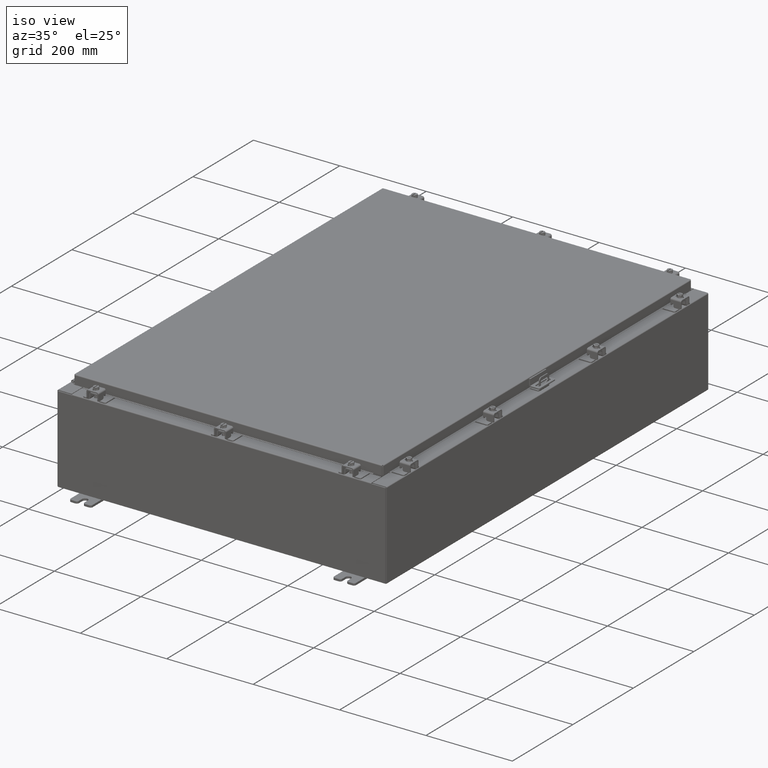
[diagram: clean part render]
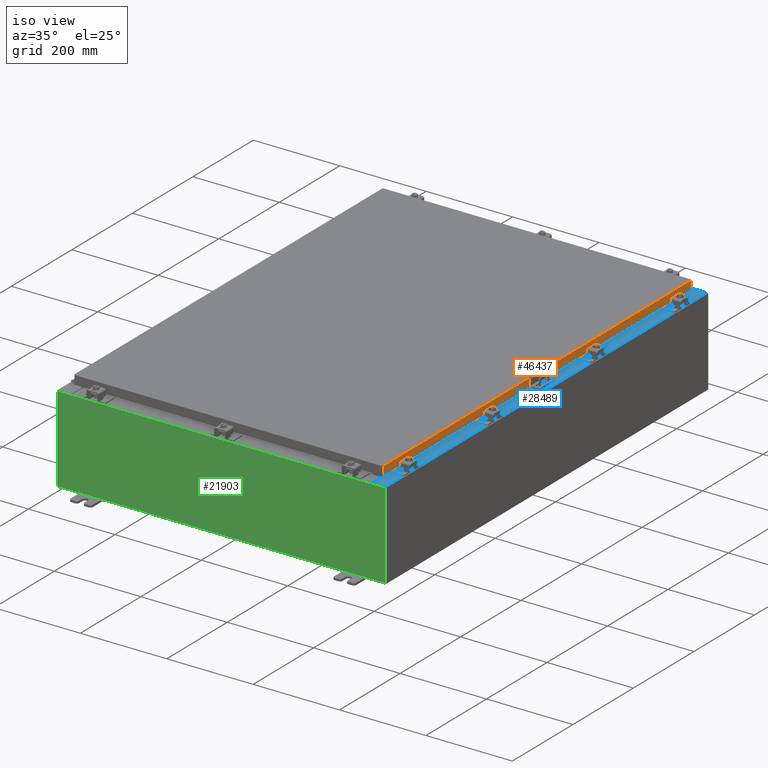
[diagram: same view with three faces highlighted in distinct colors, each labeled with its STEP entity id]
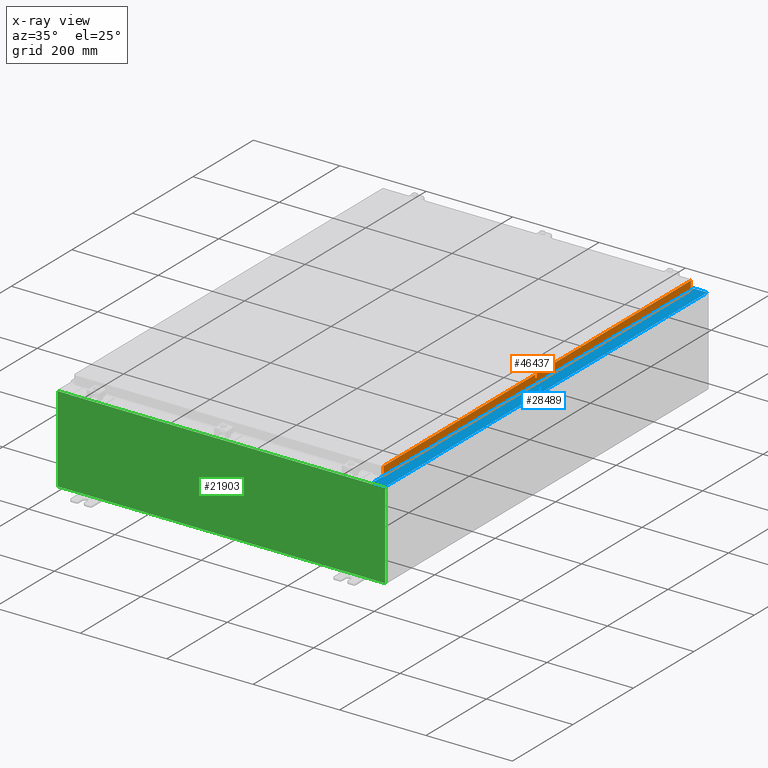
[diagram: x-ray of the same camera — body ghosted, the three highlighted faces saturated]
A machine part, iso view with three faces highlighted in distinct colors.
The next image is the same camera in x-ray (body ghosted, the three faces saturated) — at least one of them is partly hidden behind the body in this view.
Their STEP definitions:

[orange] entity #46437 — the highlighted planar face has unit normal (1, 0, 0).
#115 = VERTEX_POINT ( 'NONE', #22089 ) ;
#2015 = ORIENTED_EDGE ( 'NONE', *, *, #36370, .F. ) ;
#2615 = EDGE_CURVE ( 'NONE', #35873, #115, #22282, .T. ) ;
#3359 = CARTESIAN_POINT ( 'NONE',  ( 14.07800000000000500, -20.09400000000000800, -0.8499999999999996400 ) ) ;
#3400 = LINE ( 'NONE', #19989, #20631 ) ;
#3674 = ORIENTED_EDGE ( 'NONE', *, *, #2615, .T. ) ;
#4221 = CARTESIAN_POINT ( 'NONE',  ( 14.07799999999999600, 19.25515786437627200, -0.8500000000000018700 ) ) ;
#6210 = VECTOR ( 'NONE', #44564, 39.37007874015748100 ) ;
#8283 = EDGE_CURVE ( 'NONE', #115, #15430, #3400, .T. ) ;
#9666 = EDGE_LOOP ( 'NONE', ( #11607, #2015, #9920, #34630, #3674, #30397 ) ) ;
#9920 = ORIENTED_EDGE ( 'NONE', *, *, #14768, .F. ) ;
#10303 = DIRECTION ( 'NONE',  ( 0.0000000000000000000, -1.000000000000000000, 0.0000000000000000000 ) ) ;
#11607 = ORIENTED_EDGE ( 'NONE', *, *, #43453, .F. ) ;
#14407 = DIRECTION ( 'NONE',  ( 2.818880942772360100E-015, 0.0000000000000000000, -1.000000000000000000 ) ) ;
#14469 = CARTESIAN_POINT ( 'NONE',  ( 14.07800000000000500, -20.09400000000000800, -0.8499999999999996400 ) ) ;
#14768 = EDGE_CURVE ( 'NONE', #22478, #45991, #43158, .T. ) ;
#15430 = VERTEX_POINT ( 'NONE', #21108 ) ;
#15583 = CARTESIAN_POINT ( 'NONE',  ( 14.07800000000000500, -20.00515786437627200, -0.8499999999999996400 ) ) ;
#15672 = CARTESIAN_POINT ( 'NONE',  ( 14.07799999999999600, -19.25515786437627600, -0.8500000000000018700 ) ) ;
#18197 = DIRECTION ( 'NONE',  ( 0.0000000000000000000, -1.000000000000000000, 0.0000000000000000000 ) ) ;
#18342 = CARTESIAN_POINT ( 'NONE',  ( 14.07800000000000300, -20.00515786437628000, -0.07469999999999978000 ) ) ;
#19989 = CARTESIAN_POINT ( 'NONE',  ( 14.07800000000000300, 0.0000000000000000000, -0.08770000000000007000 ) ) ;
#20631 = VECTOR ( 'NONE', #42109, 39.37007874015748100 ) ;
#21064 = CARTESIAN_POINT ( 'NONE',  ( 14.07799999999999600, 19.25515786437627200, -0.8500000000000018700 ) ) ;
#21108 = CARTESIAN_POINT ( 'NONE',  ( 14.07800000000000300, -20.00515786437628000, -0.08770000000000007000 ) ) ;
#22089 = CARTESIAN_POINT ( 'NONE',  ( 14.07800000000000300, 20.00515786437626900, -0.08770000000000007000 ) ) ;
#22282 = LINE ( 'NONE', #29680, #33779 ) ;
#22478 = VERTEX_POINT ( 'NONE', #4221 ) ;
#23299 = VECTOR ( 'NONE', #25741, 39.37007874015748100 ) ;
#24965 = LINE ( 'NONE', #18342, #6210 ) ;
#25344 = DIRECTION ( 'NONE',  ( -2.818880942772360100E-015, -6.982962677686265900E-015, 1.000000000000000000 ) ) ;
#25563 = FACE_OUTER_BOUND ( 'NONE', #9666, .T. ) ;
#25741 = DIRECTION ( 'NONE',  ( 0.0000000000000000000, -1.000000000000000000, 0.0000000000000000000 ) ) ;
#29046 = EDGE_CURVE ( 'NONE', #35873, #22478, #41334, .T. ) ;
#29497 = PLANE ( 'NONE',  #35205 ) ;
#29680 = CARTESIAN_POINT ( 'NONE',  ( 14.07800000000000300, 20.00515786437626900, 1.796402902965222800E-013 ) ) ;
#30397 = ORIENTED_EDGE ( 'NONE', *, *, #8283, .T. ) ;
#31366 = VERTEX_POINT ( 'NONE', #15583 ) ;
#33181 = CARTESIAN_POINT ( 'NONE',  ( 14.07800000000000300, 0.0000000000000000000, 3.994501956836086900E-014 ) ) ;
#33779 = VECTOR ( 'NONE', #25344, 39.37007874015748100 ) ;
#34436 = LINE ( 'NONE', #3359, #23299 ) ;
#34630 = ORIENTED_EDGE ( 'NONE', *, *, #29046, .F. ) ;
#35205 = AXIS2_PLACEMENT_3D ( 'NONE', #33181, #48047, #14407 ) ;
#35873 = VERTEX_POINT ( 'NONE', #44291 ) ;
#36370 = EDGE_CURVE ( 'NONE', #45991, #31366, #34436, .T. ) ;
#41168 = VECTOR ( 'NONE', #10303, 39.37007874015748100 ) ;
#41334 = LINE ( 'NONE', #14469, #43660 ) ;
#42109 = DIRECTION ( 'NONE',  ( 0.0000000000000000000, -1.000000000000000000, 0.0000000000000000000 ) ) ;
#43158 = LINE ( 'NONE', #21064, #41168 ) ;
#43453 = EDGE_CURVE ( 'NONE', #31366, #15430, #24965, .T. ) ;
#43660 = VECTOR ( 'NONE', #18197, 39.37007874015748100 ) ;
#44291 = CARTESIAN_POINT ( 'NONE',  ( 14.07800000000000500, 20.00515786437627200, -0.8499999999999996400 ) ) ;
#44564 = DIRECTION ( 'NONE',  ( -2.818880942772360100E-015, -6.982962677686265900E-015, 1.000000000000000000 ) ) ;
#45991 = VERTEX_POINT ( 'NONE', #15672 ) ;
#46437 = ADVANCED_FACE ( 'NONE', ( #25563 ), #29497, .T. ) ;
#48047 = DIRECTION ( 'NONE',  ( 1.000000000000000000, 0.0000000000000000000, 2.818880942772360100E-015 ) ) ;

[blue] entity #28489 — the highlighted planar face has unit normal (-0, -0, -1).
#437 = VECTOR ( 'NONE', #20023, 39.37007874015748100 ) ;
#978 = LINE ( 'NONE', #35865, #13084 ) ;
#1206 = DIRECTION ( 'NONE',  ( -0.0000000000000000000, 1.000000000000000000, -0.0000000000000000000 ) ) ;
#2295 = VERTEX_POINT ( 'NONE', #24656 ) ;
#2790 = LINE ( 'NONE', #34608, #31394 ) ;
#2841 = ORIENTED_EDGE ( 'NONE', *, *, #18166, .F. ) ;
#3816 = DIRECTION ( 'NONE',  ( -1.000000000000000000, 4.340572780400098900E-014, -2.170286390200049500E-014 ) ) ;
#4053 = EDGE_CURVE ( 'NONE', #28879, #27797, #19448, .T. ) ;
#4117 = PLANE ( 'NONE',  #11149 ) ;
#4844 = DIRECTION ( 'NONE',  ( 0.0000000000000000000, -1.000000000000000000, 2.611047864225856100E-017 ) ) ;
#6261 = VERTEX_POINT ( 'NONE', #39890 ) ;
#7044 = EDGE_CURVE ( 'NONE', #46212, #30083, #36415, .T. ) ;
#7733 = CARTESIAN_POINT ( 'NONE',  ( 5.679009539018309200E-014, 20.92529999999999300, 7.925300000000104800 ) ) ;
#7771 = DIRECTION ( 'NONE',  ( -7.132762385546384700E-015, -2.611047864225855500E-017, -1.000000000000000000 ) ) ;
#8572 = VERTEX_POINT ( 'NONE', #29854 ) ;
#8949 = EDGE_CURVE ( 'NONE', #2295, #6261, #10738, .T. ) ;
#9854 = EDGE_CURVE ( 'NONE', #10678, #39949, #978, .T. ) ;
#10678 = VERTEX_POINT ( 'NONE', #45627 ) ;
#10738 = LINE ( 'NONE', #7733, #437 ) ;
#11011 = LINE ( 'NONE', #14951, #22107 ) ;
#11149 = AXIS2_PLACEMENT_3D ( 'NONE', #30321, #7771, #34012 ) ;
#11254 = ORIENTED_EDGE ( 'NONE', *, *, #36434, .F. ) ;
#11305 = VECTOR ( 'NONE', #46805, 39.37007874015748100 ) ;
#11671 = EDGE_CURVE ( 'NONE', #28879, #34675, #28137, .T. ) ;
#12386 = VECTOR ( 'NONE', #33981, 39.37007874015748100 ) ;
#13084 = VECTOR ( 'NONE', #3816, 39.37007874015748100 ) ;
#13444 = ORIENTED_EDGE ( 'NONE', *, *, #38628, .T. ) ;
#13893 = CARTESIAN_POINT ( 'NONE',  ( 13.69970000000003200, 2.069333763834919300E-016, 7.925300000000008900 ) ) ;
#14951 = CARTESIAN_POINT ( 'NONE',  ( 14.91230000000003000, -20.92529999999998900, 7.925300000000000000 ) ) ;
#16002 = CIRCLE ( 'NONE', #28905, 0.01867499999999949400 ) ;
#17364 = VERTEX_POINT ( 'NONE', #19510 ) ;
#18055 = DIRECTION ( 'NONE',  ( 1.000000000000000000, 0.0000000000000000000, 0.0000000000000000000 ) ) ;
#18166 = EDGE_CURVE ( 'NONE', #34675, #8572, #35719, .T. ) ;
#18200 = CARTESIAN_POINT ( 'NONE',  ( 13.71270000000003200, 19.59374999999998900, 7.925300000000009800 ) ) ;
#18777 = EDGE_CURVE ( 'NONE', #47693, #46212, #23288, .T. ) ;
#19448 = LINE ( 'NONE', #13893, #11305 ) ;
#19510 = CARTESIAN_POINT ( 'NONE',  ( 14.91230000000003000, -20.92529999999998900, 7.925300000000000000 ) ) ;
#19564 = CARTESIAN_POINT ( 'NONE',  ( 13.71270000000003200, -19.59374999999998900, 7.925300000000009800 ) ) ;
#20023 = DIRECTION ( 'NONE',  ( -1.000000000000000000, -2.189528850507526700E-047, 7.132762385546384700E-015 ) ) ;
#21341 = CARTESIAN_POINT ( 'NONE',  ( 13.75005000000003200, 19.61242499999999100, 7.925300000000009800 ) ) ;
#21982 = EDGE_CURVE ( 'NONE', #8572, #47693, #44871, .T. ) ;
#22107 = VECTOR ( 'NONE', #41176, 39.37007874015748100 ) ;
#23218 = DIRECTION ( 'NONE',  ( 1.000000000000000000, 0.0000000000000000000, 0.0000000000000000000 ) ) ;
#23288 = LINE ( 'NONE', #19564, #38563 ) ;
#23990 = CARTESIAN_POINT ( 'NONE',  ( 13.71270000000003200, -19.59374999999998900, 7.925300000000009800 ) ) ;
#24656 = CARTESIAN_POINT ( 'NONE',  ( 14.91230000000003000, 20.92529999999998600, 7.925299999999998200 ) ) ;
#25140 = DIRECTION ( 'NONE',  ( 1.000000000000000000, 0.0000000000000000000, 0.0000000000000000000 ) ) ;
#25589 = ORIENTED_EDGE ( 'NONE', *, *, #4053, .T. ) ;
#26854 = CARTESIAN_POINT ( 'NONE',  ( 13.75005000000003200, -19.63109999999998900, 7.925300000000008900 ) ) ;
#27198 = CARTESIAN_POINT ( 'NONE',  ( 13.71270000000003200, 19.59374999999998900, 7.925300000000009800 ) ) ;
#27335 = ORIENTED_EDGE ( 'NONE', *, *, #11671, .F. ) ;
#27585 = DIRECTION ( 'NONE',  ( 1.000000000000000000, 4.340572780400098900E-014, 2.170286390200049500E-014 ) ) ;
#27797 = VERTEX_POINT ( 'NONE', #44281 ) ;
#27871 = ORIENTED_EDGE ( 'NONE', *, *, #9854, .F. ) ;
#28137 = LINE ( 'NONE', #31615, #37934 ) ;
#28489 = ADVANCED_FACE ( 'NONE', ( #33852 ), #4117, .F. ) ;
#28743 = CARTESIAN_POINT ( 'NONE',  ( 13.69970000000003200, -19.63109999999999300, 7.925300000000008900 ) ) ;
#28763 = CARTESIAN_POINT ( 'NONE',  ( 13.75005000000003200, -19.61242499999999100, 7.925300000000009800 ) ) ;
#28879 = VERTEX_POINT ( 'NONE', #28743 ) ;
#28905 = AXIS2_PLACEMENT_3D ( 'NONE', #21341, #47529, #25140 ) ;
#29164 = ORIENTED_EDGE ( 'NONE', *, *, #21982, .F. ) ;
#29854 = CARTESIAN_POINT ( 'NONE',  ( 13.75005000000003200, -19.59374999999998900, 7.925300000000007100 ) ) ;
#29962 = ORIENTED_EDGE ( 'NONE', *, *, #8949, .T. ) ;
#30083 = VERTEX_POINT ( 'NONE', #45821 ) ;
#30096 = EDGE_CURVE ( 'NONE', #6261, #39949, #2790, .T. ) ;
#30287 = CARTESIAN_POINT ( 'NONE',  ( 5.679009539018310400E-014, -20.92529999999998900, 7.925300000000106600 ) ) ;
#30321 = CARTESIAN_POINT ( 'NONE',  ( 5.679009539018309800E-014, 2.069333763834944900E-016, 7.925300000000105700 ) ) ;
#31394 = VECTOR ( 'NONE', #4844, 39.37007874015748100 ) ;
#31615 = CARTESIAN_POINT ( 'NONE',  ( 13.69970000000003200, -19.63109999999999300, 7.925300000000008900 ) ) ;
#32390 = LINE ( 'NONE', #30287, #12386 ) ;
#32603 = ORIENTED_EDGE ( 'NONE', *, *, #7044, .F. ) ;
#32986 = DIRECTION ( 'NONE',  ( 7.132762385546384700E-015, 2.611047864225855500E-017, 1.000000000000000000 ) ) ;
#33852 = FACE_OUTER_BOUND ( 'NONE', #36261, .T. ) ;
#33981 = DIRECTION ( 'NONE',  ( 1.000000000000000000, 2.189528850507526700E-047, -7.132762385546384700E-015 ) ) ;
#34012 = DIRECTION ( 'NONE',  ( -1.000000000000000000, 0.0000000000000000000, 7.132762385546384700E-015 ) ) ;
#34362 = ORIENTED_EDGE ( 'NONE', *, *, #18777, .F. ) ;
#34608 = CARTESIAN_POINT ( 'NONE',  ( 13.69970000000003200, 2.069333763834919300E-016, 7.925300000000008900 ) ) ;
#34675 = VERTEX_POINT ( 'NONE', #26854 ) ;
#34988 = VECTOR ( 'NONE', #43693, 39.37007874015748100 ) ;
#35719 = CIRCLE ( 'NONE', #43538, 0.01867499999999949400 ) ;
#35865 = CARTESIAN_POINT ( 'NONE',  ( 13.75005000000003200, 19.63109999999998900, 7.925300000000009800 ) ) ;
#36031 = ORIENTED_EDGE ( 'NONE', *, *, #43929, .F. ) ;
#36261 = EDGE_LOOP ( 'NONE', ( #27335, #25589, #13444, #11254, #29962, #37646, #27871, #36031, #32603, #34362, #29164, #2841 ) ) ;
#36415 = LINE ( 'NONE', #18200, #41850 ) ;
#36434 = EDGE_CURVE ( 'NONE', #2295, #17364, #11011, .T. ) ;
#37646 = ORIENTED_EDGE ( 'NONE', *, *, #30096, .T. ) ;
#37934 = VECTOR ( 'NONE', #27585, 39.37007874015748100 ) ;
#38563 = VECTOR ( 'NONE', #1206, 39.37007874015748100 ) ;
#38628 = EDGE_CURVE ( 'NONE', #27797, #17364, #32390, .T. ) ;
#38787 = CARTESIAN_POINT ( 'NONE',  ( 13.69970000000003200, 19.63109999999998600, 7.925300000000008900 ) ) ;
#39890 = CARTESIAN_POINT ( 'NONE',  ( 13.69970000000003200, 20.92529999999998900, 7.925300000000008900 ) ) ;
#39949 = VERTEX_POINT ( 'NONE', #38787 ) ;
#41176 = DIRECTION ( 'NONE',  ( -0.0000000000000000000, -1.000000000000000000, 2.611047864225856100E-017 ) ) ;
#41850 = VECTOR ( 'NONE', #18055, 39.37007874015748100 ) ;
#42742 = CARTESIAN_POINT ( 'NONE',  ( 13.75005000000003200, -19.59374999999998900, 7.925300000000009800 ) ) ;
#43538 = AXIS2_PLACEMENT_3D ( 'NONE', #28763, #32986, #23218 ) ;
#43693 = DIRECTION ( 'NONE',  ( -1.000000000000000000, 0.0000000000000000000, 0.0000000000000000000 ) ) ;
#43929 = EDGE_CURVE ( 'NONE', #30083, #10678, #16002, .T. ) ;
#44281 = CARTESIAN_POINT ( 'NONE',  ( 13.69970000000003200, -20.92529999999998900, 7.925300000000009800 ) ) ;
#44871 = LINE ( 'NONE', #42742, #34988 ) ;
#45627 = CARTESIAN_POINT ( 'NONE',  ( 13.75005000000003200, 19.63109999999998900, 7.925300000000007100 ) ) ;
#45821 = CARTESIAN_POINT ( 'NONE',  ( 13.75005000000003200, 19.59374999999998900, 7.925300000000007100 ) ) ;
#46212 = VERTEX_POINT ( 'NONE', #27198 ) ;
#46805 = DIRECTION ( 'NONE',  ( 0.0000000000000000000, -1.000000000000000000, 2.611047864225856100E-017 ) ) ;
#47529 = DIRECTION ( 'NONE',  ( 7.132762385546384700E-015, 2.611047864225855500E-017, 1.000000000000000000 ) ) ;
#47693 = VERTEX_POINT ( 'NONE', #23990 ) ;

[green] entity #21903 — the highlighted planar face has unit normal (-0, 1, -0).
#81 = VERTEX_POINT ( 'NONE', #30901 ) ;
#389 = PLANE ( 'NONE',  #42339 ) ;
#785 = LINE ( 'NONE', #25272, #37926 ) ;
#1573 = LINE ( 'NONE', #46396, #17636 ) ;
#1626 = DIRECTION ( 'NONE',  ( 1.000000000000000000, 0.0000000000000000000, 0.0000000000000000000 ) ) ;
#1897 = ORIENTED_EDGE ( 'NONE', *, *, #5685, .F. ) ;
#2200 = VERTEX_POINT ( 'NONE', #24349 ) ;
#2315 = DIRECTION ( 'NONE',  ( 0.0000000000000000000, 0.0000000000000000000, -1.000000000000000000 ) ) ;
#2739 = VERTEX_POINT ( 'NONE', #17056 ) ;
#3634 = CARTESIAN_POINT ( 'NONE',  ( -13.67454999999999500, 0.0000000000000000000, 3.874949999999999700 ) ) ;
#3639 = EDGE_CURVE ( 'NONE', #30363, #33406, #36214, .T. ) ;
#4400 = ORIENTED_EDGE ( 'NONE', *, *, #35829, .F. ) ;
#4952 = VECTOR ( 'NONE', #20253, 39.37007874015748100 ) ;
#5685 = EDGE_CURVE ( 'NONE', #2739, #41238, #23270, .T. ) ;
#6589 = DIRECTION ( 'NONE',  ( -4.340572780400004900E-014, 0.0000000000000000000, -1.000000000000000000 ) ) ;
#6621 = VECTOR ( 'NONE', #10357, 39.37007874015748100 ) ;
#6842 = ORIENTED_EDGE ( 'NONE', *, *, #23153, .F. ) ;
#7614 = CARTESIAN_POINT ( 'NONE',  ( -14.92529999999999800, 0.0000000000000000000, 3.925299999999999600 ) ) ;
#8203 = VECTOR ( 'NONE', #36152, 39.37007874015748100 ) ;
#8281 = CARTESIAN_POINT ( 'NONE',  ( 14.92530000000000200, 0.0000000000000000000, -3.925299999999999600 ) ) ;
#8535 = CARTESIAN_POINT ( 'NONE',  ( -14.92529999999999800, 0.0000000000000000000, -3.925299999999999600 ) ) ;
#8602 = FACE_OUTER_BOUND ( 'NONE', #43714, .T. ) ;
#8771 = LINE ( 'NONE', #14679, #8203 ) ;
#9081 = EDGE_CURVE ( 'NONE', #38208, #20769, #1573, .T. ) ;
#10357 = DIRECTION ( 'NONE',  ( 0.0000000000000000000, 0.0000000000000000000, -1.000000000000000000 ) ) ;
#10645 = CARTESIAN_POINT ( 'NONE',  ( -13.67454999999999500, 0.0000000000000000000, 3.925299999999999600 ) ) ;
#10763 = CARTESIAN_POINT ( 'NONE',  ( -13.63719999999999800, 1.024442997624098700E-016, 3.912299999999999700 ) ) ;
#10948 = CARTESIAN_POINT ( 'NONE',  ( 14.92530000000000200, 0.0000000000000000000, 3.925299999999999600 ) ) ;
#11096 = DIRECTION ( 'NONE',  ( 0.0000000000000000000, 0.0000000000000000000, -1.000000000000000000 ) ) ;
#12041 = EDGE_CURVE ( 'NONE', #41238, #33406, #8771, .T. ) ;
#14679 = CARTESIAN_POINT ( 'NONE',  ( 13.63720000000000400, 0.0000000000000000000, 0.0000000000000000000 ) ) ;
#15082 = DIRECTION ( 'NONE',  ( -1.000000000000000000, -0.0000000000000000000, -0.0000000000000000000 ) ) ;
#15108 = CARTESIAN_POINT ( 'NONE',  ( -14.92529999999999800, 0.0000000000000000000, 3.925299999999999600 ) ) ;
#15232 = DIRECTION ( 'NONE',  ( -0.0000000000000000000, 1.000000000000000000, -0.0000000000000000000 ) ) ;
#15505 = VERTEX_POINT ( 'NONE', #10645 ) ;
#16738 = DIRECTION ( 'NONE',  ( -0.0000000000000000000, 1.000000000000000000, -0.0000000000000000000 ) ) ;
#16848 = DIRECTION ( 'NONE',  ( 0.0000000000000000000, 0.0000000000000000000, -1.000000000000000000 ) ) ;
#16981 = LINE ( 'NONE', #44132, #6621 ) ;
#17056 = CARTESIAN_POINT ( 'NONE',  ( 13.67455000000000200, 0.0000000000000000000, 3.874949999999999700 ) ) ;
#17375 = VECTOR ( 'NONE', #1626, 39.37007874015748100 ) ;
#17636 = VECTOR ( 'NONE', #15082, 39.37007874015748100 ) ;
#18178 = AXIS2_PLACEMENT_3D ( 'NONE', #27337, #15232, #11096 ) ;
#18358 = CARTESIAN_POINT ( 'NONE',  ( 14.92530000000000200, 0.0000000000000000000, 3.925299999999999600 ) ) ;
#19957 = EDGE_CURVE ( 'NONE', #20666, #38208, #35225, .T. ) ;
#20253 = DIRECTION ( 'NONE',  ( 1.000000000000000000, 0.0000000000000000000, 0.0000000000000000000 ) ) ;
#20512 = ORIENTED_EDGE ( 'NONE', *, *, #25420, .F. ) ;
#20605 = CARTESIAN_POINT ( 'NONE',  ( -14.92529999999999800, 0.0000000000000000000, 3.925299999999999600 ) ) ;
#20666 = VERTEX_POINT ( 'NONE', #10948 ) ;
#20769 = VERTEX_POINT ( 'NONE', #8535 ) ;
#21606 = CARTESIAN_POINT ( 'NONE',  ( -14.92529999999999800, 0.0000000000000000000, 3.925299999999999600 ) ) ;
#21903 = ADVANCED_FACE ( 'NONE', ( #8602 ), #389, .F. ) ;
#22926 = LINE ( 'NONE', #21606, #35236 ) ;
#23153 = EDGE_CURVE ( 'NONE', #46468, #15505, #28812, .T. ) ;
#23270 = CIRCLE ( 'NONE', #18178, 0.01867499999999949400 ) ;
#23322 = ORIENTED_EDGE ( 'NONE', *, *, #3639, .T. ) ;
#24349 = CARTESIAN_POINT ( 'NONE',  ( -13.63719999999999600, -0.0000000000000000000, 3.874949999999999700 ) ) ;
#24382 = VECTOR ( 'NONE', #37712, 39.37007874015748100 ) ;
#25272 = CARTESIAN_POINT ( 'NONE',  ( 13.67454999999983300, -0.0000000000000000000, -5.935537951421816200E-013 ) ) ;
#25416 = DIRECTION ( 'NONE',  ( 1.000000000000000000, 0.0000000000000000000, 0.0000000000000000000 ) ) ;
#25420 = EDGE_CURVE ( 'NONE', #2200, #46468, #47741, .T. ) ;
#26093 = EDGE_CURVE ( 'NONE', #29883, #15505, #34808, .T. ) ;
#26505 = VECTOR ( 'NONE', #2315, 39.37007874015748100 ) ;
#27337 = CARTESIAN_POINT ( 'NONE',  ( 13.65587500000000200, 0.0000000000000000000, 3.874949999999999700 ) ) ;
#27598 = VECTOR ( 'NONE', #43625, 39.37007874015748100 ) ;
#27736 = EDGE_CURVE ( 'NONE', #81, #20666, #22926, .T. ) ;
#28812 = LINE ( 'NONE', #37078, #27598 ) ;
#29219 = EDGE_CURVE ( 'NONE', #20769, #29883, #34348, .T. ) ;
#29883 = VERTEX_POINT ( 'NONE', #7614 ) ;
#30363 = VERTEX_POINT ( 'NONE', #32341 ) ;
#30901 = CARTESIAN_POINT ( 'NONE',  ( 13.67455000000000400, 0.0000000000000000000, 3.925299999999999600 ) ) ;
#32341 = CARTESIAN_POINT ( 'NONE',  ( -13.63719999999999600, 1.024442997624098700E-016, 3.912299999999999700 ) ) ;
#32579 = ORIENTED_EDGE ( 'NONE', *, *, #19957, .T. ) ;
#32927 = ORIENTED_EDGE ( 'NONE', *, *, #39078, .F. ) ;
#32985 = CARTESIAN_POINT ( 'NONE',  ( 13.63720000000000400, 0.0000000000000000000, 3.912299999999999700 ) ) ;
#33406 = VERTEX_POINT ( 'NONE', #32985 ) ;
#33770 = CARTESIAN_POINT ( 'NONE',  ( -13.65587499999999600, 0.0000000000000000000, 3.874949999999999700 ) ) ;
#34348 = LINE ( 'NONE', #15108, #24382 ) ;
#34487 = ORIENTED_EDGE ( 'NONE', *, *, #27736, .T. ) ;
#34808 = LINE ( 'NONE', #20605, #4952 ) ;
#35225 = LINE ( 'NONE', #18358, #26505 ) ;
#35236 = VECTOR ( 'NONE', #25416, 39.37007874015748100 ) ;
#35829 = EDGE_CURVE ( 'NONE', #81, #2739, #785, .T. ) ;
#36152 = DIRECTION ( 'NONE',  ( 0.0000000000000000000, 0.0000000000000000000, 1.000000000000000000 ) ) ;
#36214 = LINE ( 'NONE', #10763, #17375 ) ;
#36477 = AXIS2_PLACEMENT_3D ( 'NONE', #33770, #16738, #16848 ) ;
#36609 = CARTESIAN_POINT ( 'NONE',  ( 13.63720000000000400, 0.0000000000000000000, 3.874949999999999700 ) ) ;
#37078 = CARTESIAN_POINT ( 'NONE',  ( -13.67454999999999500, -0.0000000000000000000, 0.0000000000000000000 ) ) ;
#37712 = DIRECTION ( 'NONE',  ( -0.0000000000000000000, -0.0000000000000000000, 1.000000000000000000 ) ) ;
#37926 = VECTOR ( 'NONE', #6589, 39.37007874015748100 ) ;
#38208 = VERTEX_POINT ( 'NONE', #8281 ) ;
#38938 = ORIENTED_EDGE ( 'NONE', *, *, #12041, .F. ) ;
#39078 = EDGE_CURVE ( 'NONE', #30363, #2200, #16981, .T. ) ;
#41238 = VERTEX_POINT ( 'NONE', #36609 ) ;
#42339 = AXIS2_PLACEMENT_3D ( 'NONE', #47672, #47569, #47904 ) ;
#43625 = DIRECTION ( 'NONE',  ( 0.0000000000000000000, 0.0000000000000000000, 1.000000000000000000 ) ) ;
#43714 = EDGE_LOOP ( 'NONE', ( #6842, #20512, #32927, #23322, #38938, #1897, #4400, #34487, #32579, #46588, #46607, #43970 ) ) ;
#43970 = ORIENTED_EDGE ( 'NONE', *, *, #26093, .T. ) ;
#44132 = CARTESIAN_POINT ( 'NONE',  ( -13.63719999999999600, -0.0000000000000000000, 0.0000000000000000000 ) ) ;
#46396 = CARTESIAN_POINT ( 'NONE',  ( -14.92529999999999800, 0.0000000000000000000, -3.925299999999999600 ) ) ;
#46468 = VERTEX_POINT ( 'NONE', #3634 ) ;
#46588 = ORIENTED_EDGE ( 'NONE', *, *, #9081, .T. ) ;
#46607 = ORIENTED_EDGE ( 'NONE', *, *, #29219, .T. ) ;
#47569 = DIRECTION ( 'NONE',  ( 0.0000000000000000000, -1.000000000000000000, 0.0000000000000000000 ) ) ;
#47672 = CARTESIAN_POINT ( 'NONE',  ( 0.0000000000000000000, 0.0000000000000000000, 0.0000000000000000000 ) ) ;
#47741 = CIRCLE ( 'NONE', #36477, 0.01867499999999949400 ) ;
#47904 = DIRECTION ( 'NONE',  ( 0.0000000000000000000, -0.0000000000000000000, -1.000000000000000000 ) ) ;